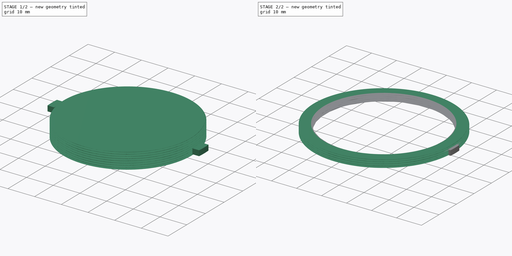
[diagram: build sequence overview — one tinted view per stage of 2, left to right]
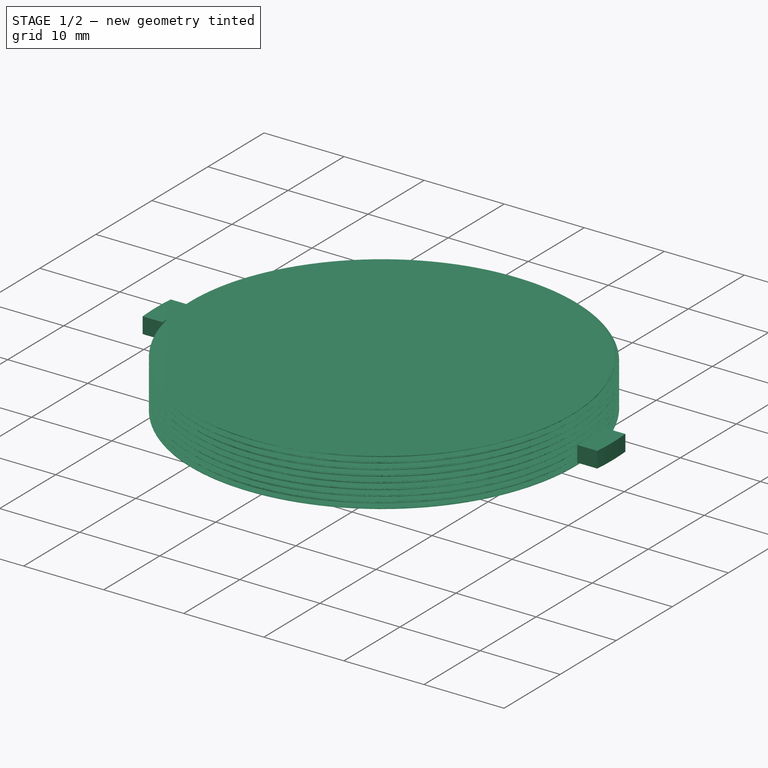
[diagram: stage 1 of 2 — iso view after this stage's code; geometry added in this stage tinted green]
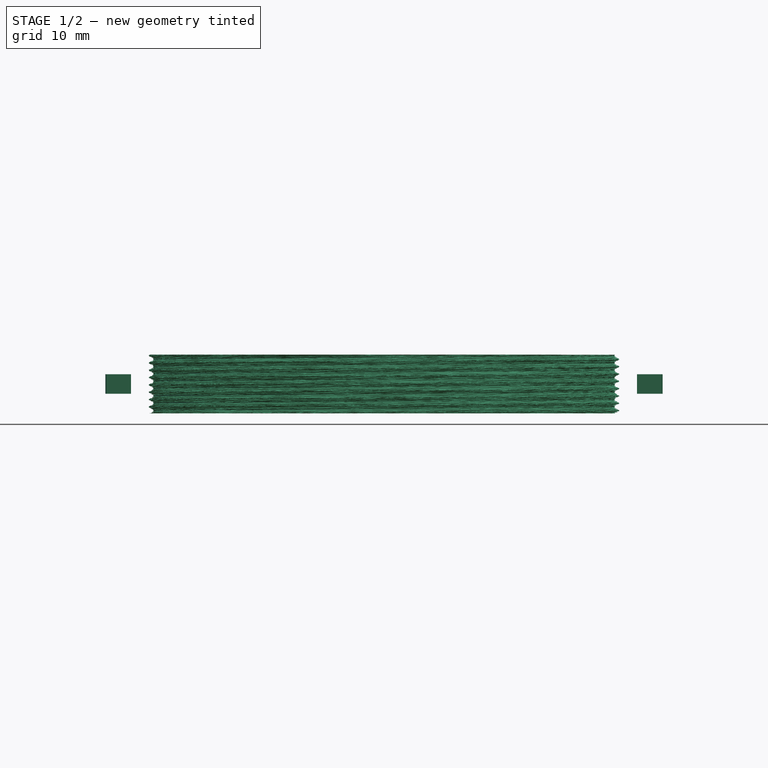
[diagram: stage 1 of 2 — front view after this stage's code; geometry added in this stage tinted green]
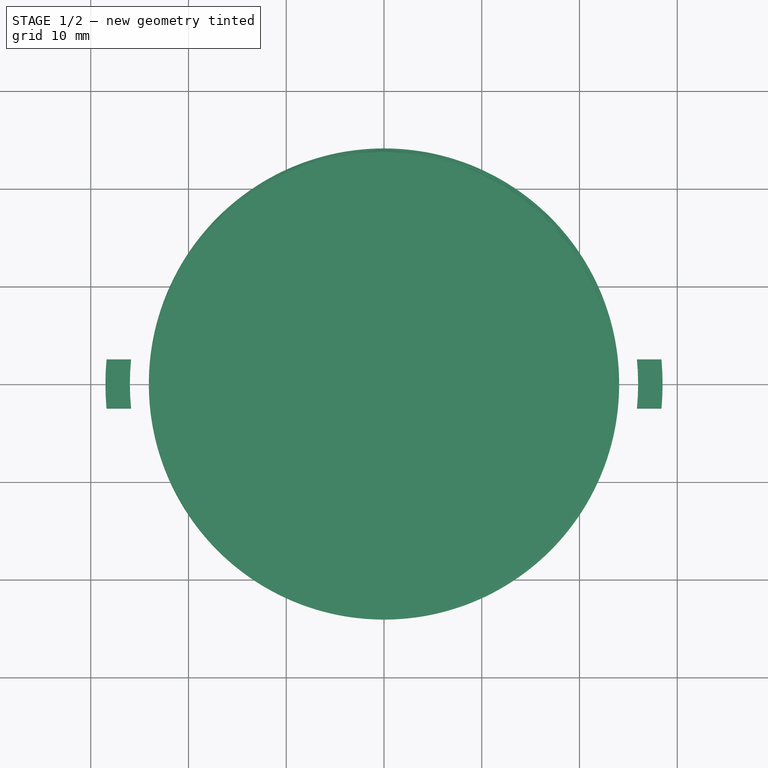
[diagram: stage 1 of 2 — top view after this stage's code; geometry added in this stage tinted green]
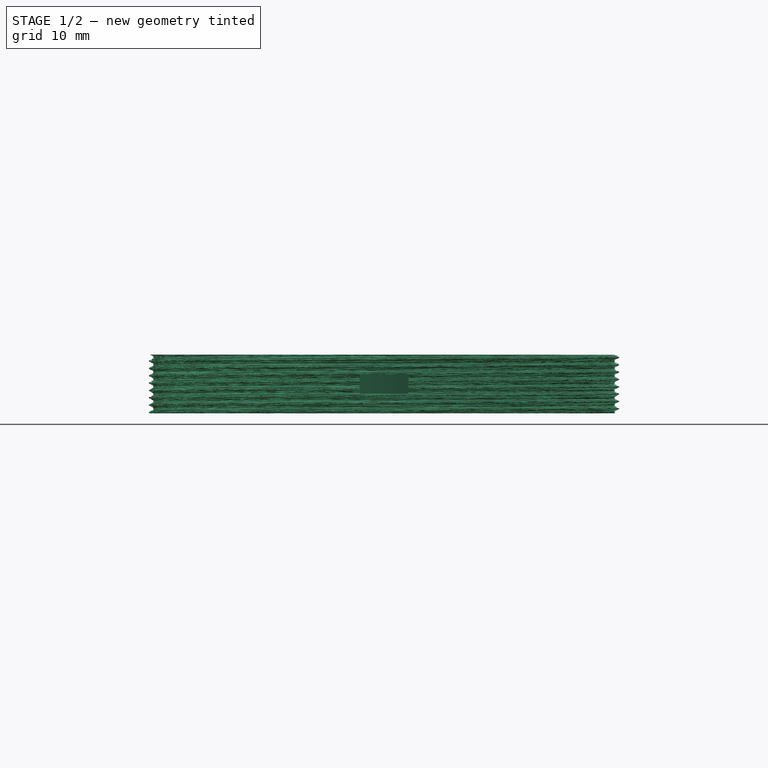
[diagram: stage 1 of 2 — right view after this stage's code; geometry added in this stage tinted green]
FCSTD DOCUMENT  (FreeCAD 2021.717R24301 +3627 (Git))
Label: M56 to M48 adapter
License: All rights reserved
LicenseURL: http://en.wikipedia.org/wiki/All_rights_reserved
objects: PartDesign::Body×3, Part::Part2DObjectPython×2, PartDesign::AdditiveHelix×2, Part::Cut×1, Sketcher::SketchObject×1, PartDesign::Pad×1
note: 16 computed .brp shape members not serialized (recipe doc carries the construction recipe); baked Part::Feature solids carry a one-line shape summary decoded from their .brp

FEATURE [PartDesign::Body] Body
  AutoGroupSolids = false
  ExportMode = 0
  Group = -> [VThreadProfile,AdditiveHelix]
  Origin = -> Origin
  Placement = pos=(0,0,2) rot=(0,0,1;0rad)
  Tip = -> AdditiveHelix
  _ExportChildren = -> [AdditiveHelix]
  _GroupVersion = 1
FEATURE [Part::Part2DObjectPython] VThreadProfile001  # Draft 2D object (typed FeaturePython)
  Area = 1782.31
  Closed = true
  Continuity = C3
  Instructions = Expand this with the ... button to view instructions | Sweep this object along a helix of the same pitch to produce your thread. | It is recommended to make the helix in the ThreadProfile workbench. | If there is an active Body the ThreadProfile object will be put into it.,If not it can be dragged and dropped into the body later. | If there is an active Body when the helix is made there will be made a ShapeBinder for it | For internal threads you will need to cut the Sweep object out of a cylinder, or if using Part Design sweep it as a Subtractive Pipe. | Always use Frenet mode | I have provided some presets, but it is possible there could be some errors.  Double check for mission critical applications. | Also, the tolerances might be different from what you wish to have.  I believe the internal minor diameters are all minimum and the external are all maximum.
  InternalOrExternal = 1
  MakeFace = true
  MinorDiameter = 47.3
  Parameterization = 1
  Pitch = 0.75
  Points = (719) [(23.6473,0.206654,0),(23.6429,0.413263,0),(23.6368,0.619812,0),(23.6289,0.826288,0),(23.6193,1.03268,0),(23.6079,1.23896,0),(23.5948,1.44513,0),+712 more]
  Presets = 0
  Quality = 1
  ThreadCount = 10
  Version = 1.69
  external_data = [-0.00235387,-0.00461052,-0.00677828,-0.00886428,-0.0108747,-0.0128149,-0.0146895,-0.0165028,-0.0182584,-0.0199597,-0.0216095,-0.0232106,-0.0247653,-0.0262759,-0.0277444,-0.0291725,-0.0305621,-0.0319145,-0.0332313,-0.0345138,-0.0357632,+698 more]
  internal_data = [0,0,0,0,0,0,0,0,0,0,0,0,0,0,0,0,0,0,0,0,0,0,0,0,0,0,0,0,0,0,0,0,0,0,0,0,0,0,0,0,0,0,0,0,0,0,0,0,0,0,0,0,0,0,0,0,0,0,0,0,0,0,0,0,0,0,0,0,0,0,0,0,0,0,0,0,0,0,0,0,0,0,0,0,0,0,0,0,0,0,0,0,0,0,0,0,0,0,0,0,0,0,0,0,0,0,0,0,0,0,0,0,0,0,0,0,0,0,0,0,+599 more]
  preset_names = <blob: 3959 chars omitted>
  presets_data = [0,0,0,2.20878,24.1173,24.6888,0.25,0.693,0.729,0.25,0.793,0.829,0.25,0.893,0.929,0.3,1.032,1.075,0.35,1.171,1.221,0.35,1.371,1.421,0.4,1.509,1.567,0.45,1.648,1.713,0.45,1.948,2.013,0.5,2.387,2.459,0.6,2.764,2.85,0.7,3.141,3.242,0.75,3.58,+712 more]
FEATURE [PartDesign::AdditiveHelix] AdditiveHelix001
  Angle = 0
  Axis = (-3e-16,3e-16,1)
  Base = (0,0,0)
  ClaimChildren = false
  Fit = 0
  FitJoin = 0
  HasBeenEdited = true
  Height = 6
  InnerFit = 0
  InnerFitJoin = 0
  LeftHanded = false
  Mode = 0
  NewSolid = false
  Outside = false
  Pitch = 0.75
  Profile = -> VThreadProfile001
  ReferenceAxis = -> Z_Axis001
  Refine = true
  Suppress = false
  Turns = 3
  _ProfileBasedVersion = 1
FEATURE [Sketcher::SketchObject] Sketch
  AttachmentOffset = pos=(0,0,2) rot=(0,0,1;0rad)
  FullyConstrained = true
  MapMode = 5
  Placement = pos=(0,0,2) rot=(0,0,1;0rad)
  Support = -> [XY_Plane002]
  sketch-geometry (8):
    g0: ArcOfCircle CenterX=0 CenterY=7e-15 CenterZ=0 NormalX=0 NormalY=0 NormalZ=1 AngleXU=0 Radius=26 StartAngle=6.18688 EndAngle=6.37949
    g1: ArcOfCircle CenterX=0 CenterY=7e-15 CenterZ=0 NormalX=0 NormalY=0 NormalZ=1 AngleXU=0 Radius=28.5 StartAngle=6.19535 EndAngle=6.37102
    g2: LineSegment StartX=25.8795 StartY=2.5 StartZ=0 EndX=28.3901 EndY=2.5 EndZ=0
    g3: LineSegment StartX=25.8795 StartY=-2.5 StartZ=0 EndX=28.3901 EndY=-2.5 EndZ=0
    g4: ArcOfCircle CenterX=0 CenterY=7e-15 CenterZ=0 NormalX=0 NormalY=0 NormalZ=1 AngleXU=0 Radius=26 StartAngle=3.04529 EndAngle=3.2379
    g5: ArcOfCircle CenterX=0 CenterY=7e-15 CenterZ=0 NormalX=0 NormalY=0 NormalZ=1 AngleXU=0 Radius=28.5 StartAngle=3.05376 EndAngle=3.22942
    g6: LineSegment StartX=-25.8795 StartY=2.5 StartZ=0 EndX=-28.3901 EndY=2.5 EndZ=0
    g7: LineSegment StartX=-25.8795 StartY=-2.5 StartZ=0 EndX=-28.3901 EndY=-2.5 EndZ=0
  constraints (24):
    c: Coincident(g0,g-1)
    c: Coincident(g1,g0)
    c: Coincident(g2,g0)
    c: Coincident(g2,g1)
    c: Coincident(g3,g0)
    c: Coincident(g3,g1)
    c: Symmetric(g1,g1,g-1)
    c: Diameter(g0) = 52
    c: Diameter(g1) = 57
    c: Horizontal(g2)
    c: DistanceY(g1,g1) = 5
    c: Horizontal(g3)
    c: Coincident(g5,g4)
    c: Coincident(g6,g4)
    c: Coincident(g6,g5)
    c: Coincident(g7,g4)
    c: Coincident(g7,g5)
    c: Diameter(g4) = 52
    c: Diameter(g5) = 57
    c: Horizontal(g6)
    c: Horizontal(g7)
    c: DistanceY(g5,g5) = 5
    c: Symmetric(g5,g5,g-1)
    c: Coincident(g4,g0)
FEATURE [PartDesign::Pad] Pad
  ClaimChildren = false
  Direction = (1,1,1)
  Fit = 0
  FitJoin = 0
  InnerFit = 0
  InnerFitJoin = 0
  InnerTaperAngle = 0
  InnerTaperAngleRev = 0
  Length = 2
  Length2 = 100
  Linearize = true
  NewSolid = false
  Profile = -> Sketch
  Refine = true
  Suppress = false
  Type = 0
  _ProfileBasedVersion = 1
FEATURE [PartDesign::Body] Body002
  AutoGroupSolids = false
  ExportMode = 0
  Group = -> [Sketch,Pad]
  Origin = -> Origin002
  Placement = pos=(0,0,2) rot=(0,0,1;0.785398rad)
  Tip = -> Pad
  _ExportChildren = -> [Pad]
  _GroupVersion = 1
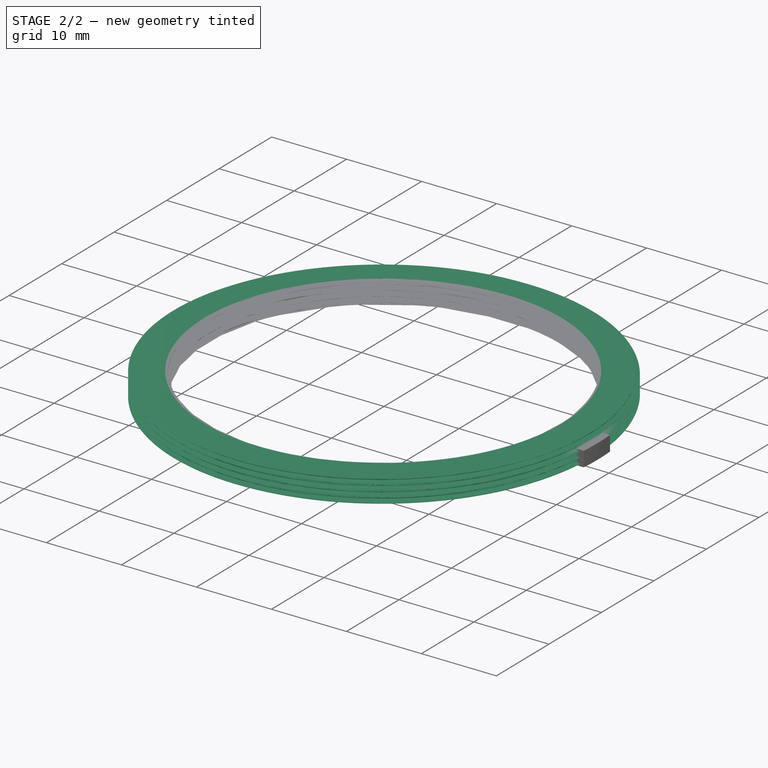
[diagram: stage 2 of 2 — iso view after this stage's code; geometry added in this stage tinted green]
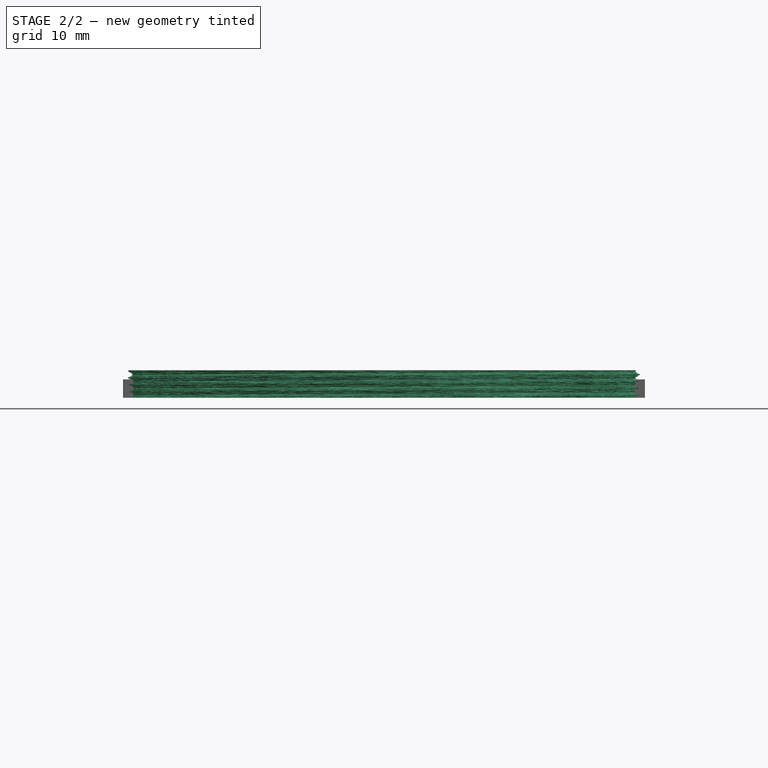
[diagram: stage 2 of 2 — front view after this stage's code; geometry added in this stage tinted green]
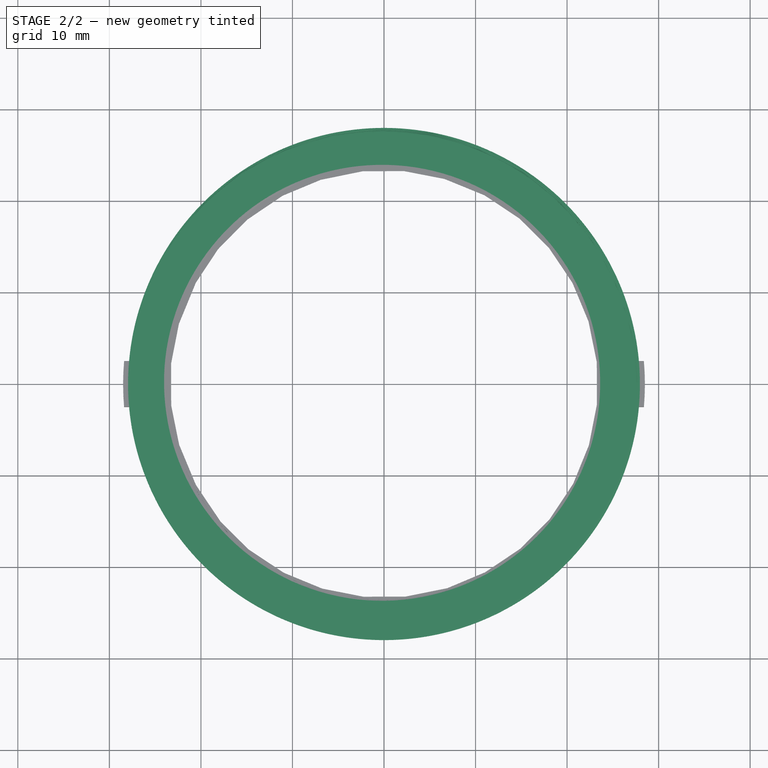
[diagram: stage 2 of 2 — top view after this stage's code; geometry added in this stage tinted green]
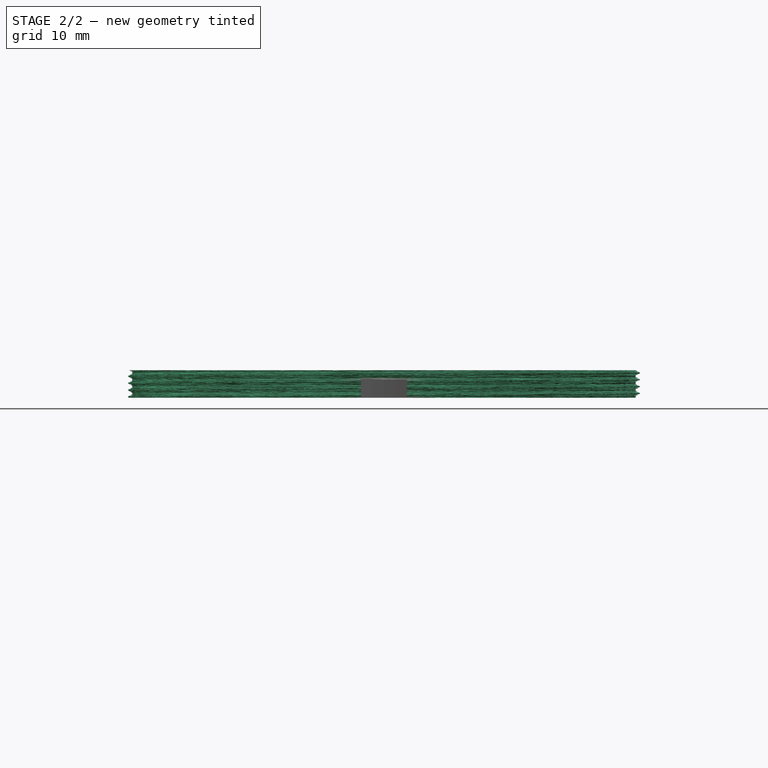
[diagram: stage 2 of 2 — right view after this stage's code; geometry added in this stage tinted green]
FEATURE [Part::Part2DObjectPython] VThreadProfile  # Draft 2D object (typed FeaturePython)
  Area = 2413.74
  Closed = true
  Continuity = C3
  Instructions = Expand this with the ... button to view instructions | Sweep this object along a helix of the same pitch to produce your thread. | It is recommended to make the helix in the ThreadProfile workbench. | If there is an active Body the ThreadProfile object will be put into it.,If not it can be dragged and dropped into the body later. | If there is an active Body when the helix is made there will be made a ShapeBinder for it | For internal threads you will need to cut the Sweep object out of a cylinder, or if using Part Design sweep it as a Subtractive Pipe. | Always use Frenet mode | I have provided some presets, but it is possible there could be some errors.  Double check for mission critical applications. | Also, the tolerances might be different from what you wish to have.  I believe the internal minor diameters are all minimum and the external are all maximum.
  InternalOrExternal = 1
  MakeFace = true
  MinorDiameter = 55.1
  Parameterization = 1
  Pitch = 0.75
  Points = (719) [(27.5472,0.240735,0),(27.5423,0.481422,0),(27.5355,0.722044,0),(27.5265,0.962585,0),(27.5156,1.20303,0),(27.5025,1.44336,0),(27.4875,1.68355,0),+712 more]
  Presets = 0
  Quality = 1
  ThreadCount = 10
  Version = 1.69
  external_data = [-0.00235387,-0.00461052,-0.00677828,-0.00886428,-0.0108747,-0.0128149,-0.0146895,-0.0165028,-0.0182584,-0.0199597,-0.0216095,-0.0232106,-0.0247653,-0.0262759,-0.0277444,-0.0291725,-0.0305621,-0.0319145,-0.0332313,-0.0345138,-0.0357632,+698 more]
  internal_data = [0,0,0,0,0,0,0,0,0,0,0,0,0,0,0,0,0,0,0,0,0,0,0,0,0,0,0,0,0,0,0,0,0,0,0,0,0,0,0,0,0,0,0,0,0,0,0,0,0,0,0,0,0,0,0,0,0,0,0,0,0,0,0,0,0,0,0,0,0,0,0,0,0,0,0,0,0,0,0,0,0,0,0,0,0,0,0,0,0,0,0,0,0,0,0,0,0,0,0,0,0,0,0,0,0,0,0,0,0,0,0,0,0,0,0,0,0,0,0,0,+599 more]
  preset_names = <blob: 3959 chars omitted>
  presets_data = [0,0,0,2.20878,24.1173,24.6888,0.25,0.693,0.729,0.25,0.793,0.829,0.25,0.893,0.929,0.3,1.032,1.075,0.35,1.171,1.221,0.35,1.371,1.421,0.4,1.509,1.567,0.45,1.648,1.713,0.45,1.948,2.013,0.5,2.387,2.459,0.6,2.764,2.85,0.7,3.141,3.242,0.75,3.58,+712 more]
FEATURE [PartDesign::AdditiveHelix] AdditiveHelix
  Angle = 0
  Axis = (-3e-16,3e-16,1)
  Base = (0,0,0)
  ClaimChildren = false
  Fit = 0
  FitJoin = 0
  HasBeenEdited = true
  Height = 3
  InnerFit = 0
  InnerFitJoin = 0
  LeftHanded = false
  Mode = 0
  NewSolid = false
  Outside = false
  Pitch = 0.75
  Profile = -> VThreadProfile
  ReferenceAxis = -> Z_Axis
  Refine = true
  Suppress = false
  Turns = 3
  _ProfileBasedVersion = 1
FEATURE [PartDesign::Body] Body001
  AutoGroupSolids = false
  ExportMode = 0
  Group = -> [VThreadProfile001,AdditiveHelix001]
  Origin = -> Origin001
  Placement = pos=(0,0,0) rot=(0,0,1;0.785398rad)
  Tip = -> AdditiveHelix001
  _ExportChildren = -> [AdditiveHelix001]
  _GroupVersion = 1
FEATURE [Part::Cut] Cut
  Base = -> Body
  Refine = true
  Tool = -> Body001
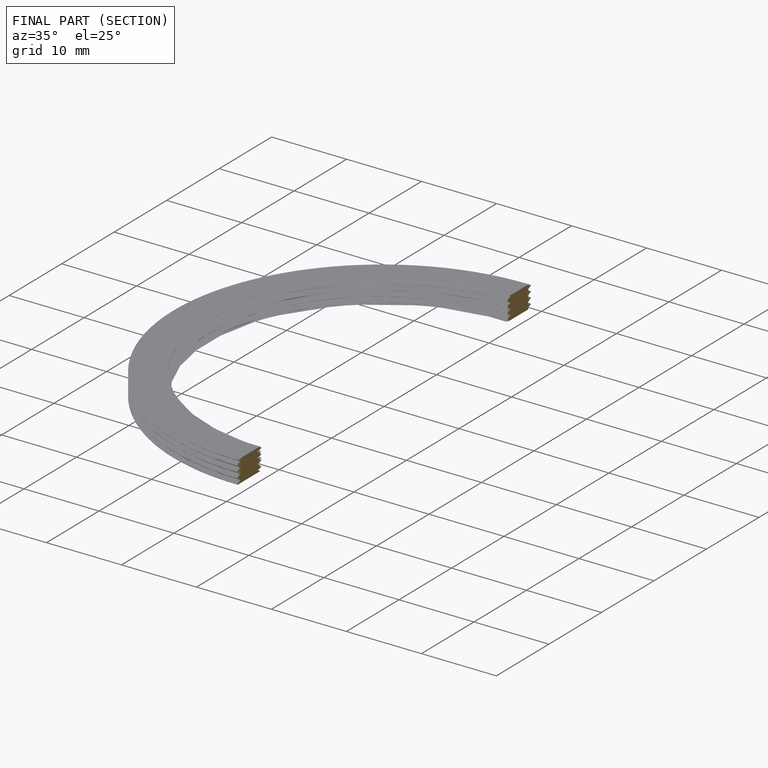
[diagram: finished part — half-section view (interior)]
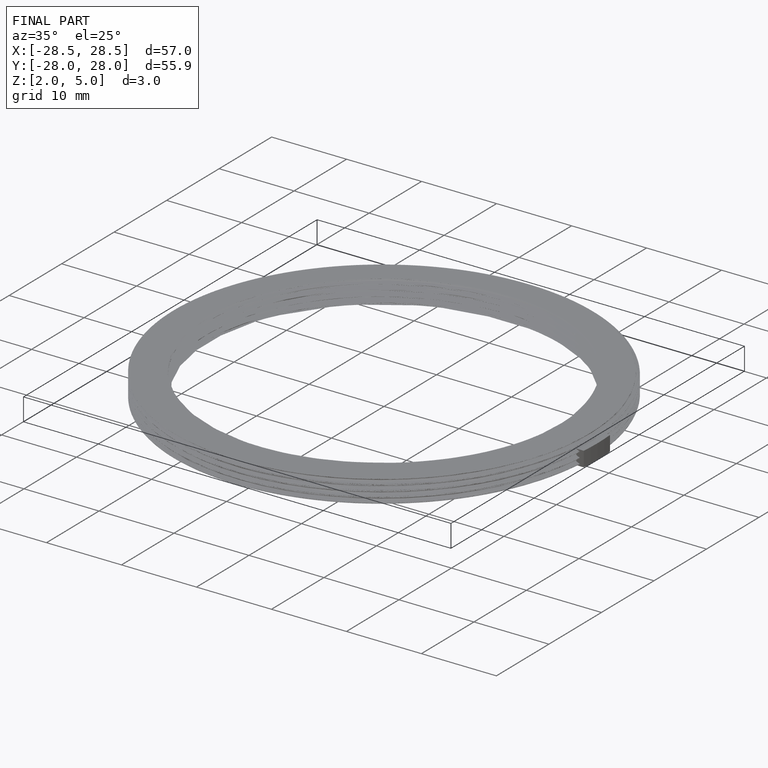
[diagram: finished part — iso view with bounding-box wireframe]
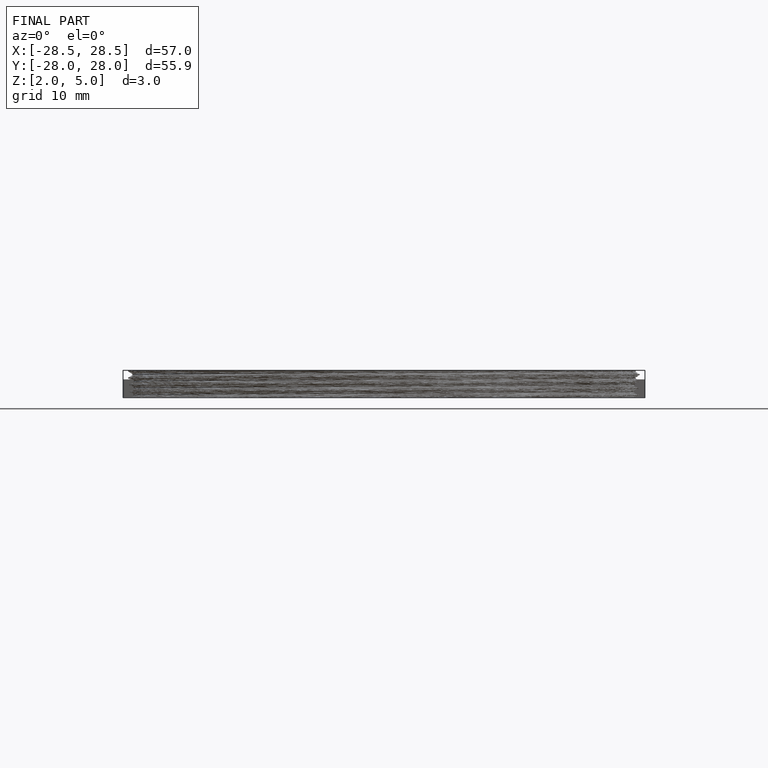
[diagram: finished part — front view with bounding-box wireframe]
